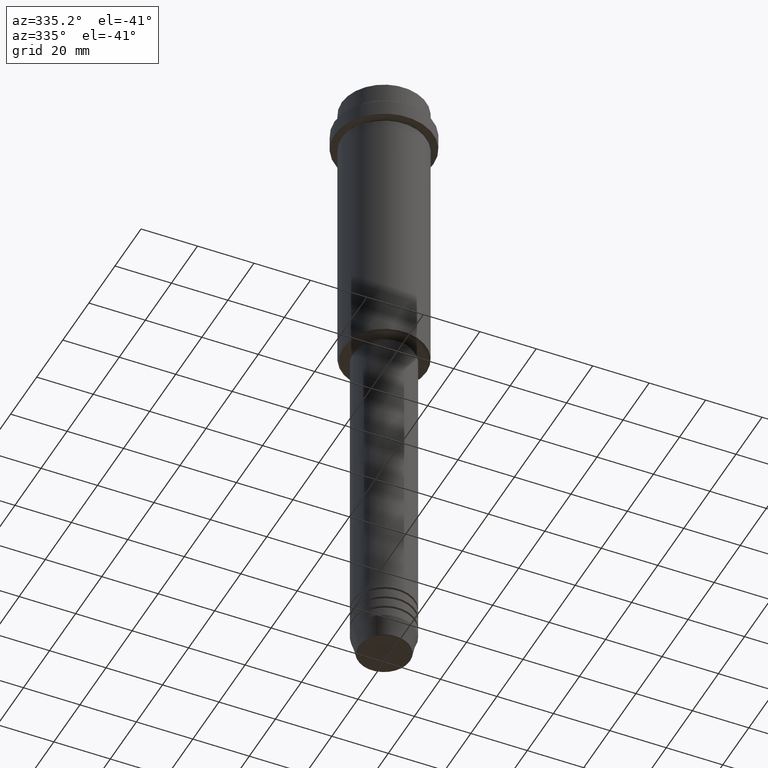
[diagram: clean part render]
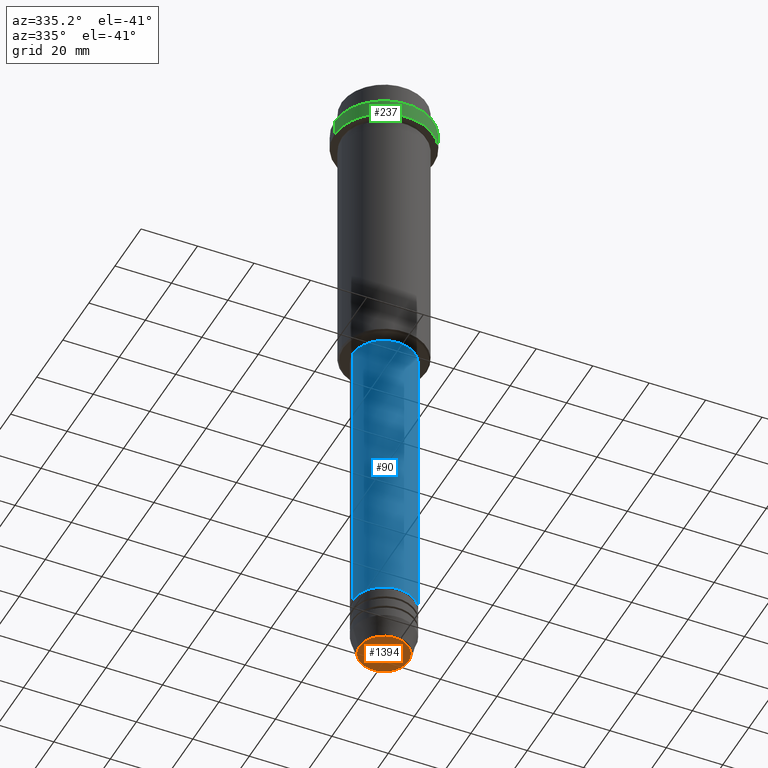
[diagram: same view with three faces highlighted in distinct colors, each labeled with its STEP entity id]
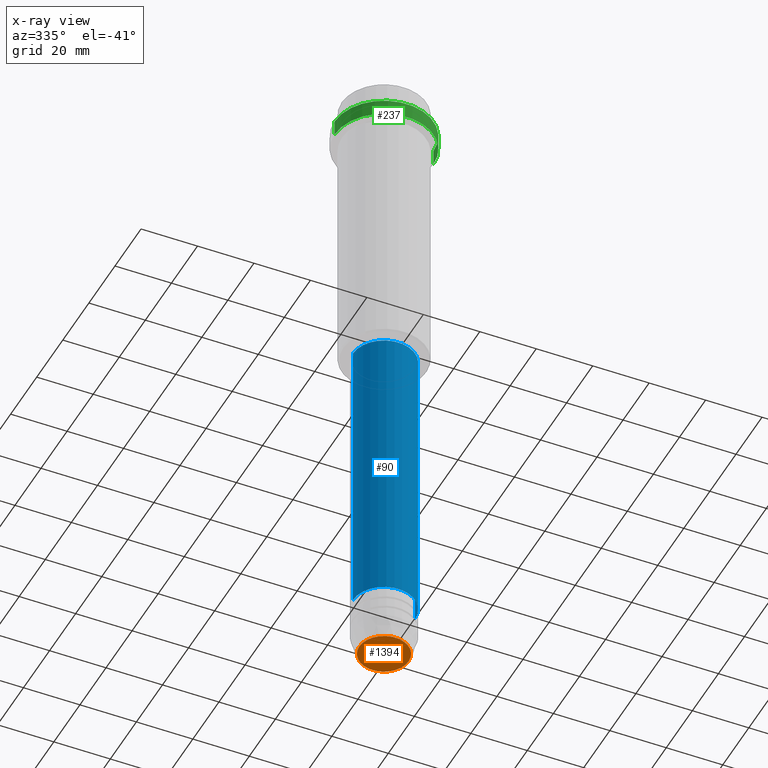
[diagram: x-ray of the same camera — body ghosted, the three highlighted faces saturated]
A machine part, auxiliary view with three faces highlighted in distinct colors.
The next image is the same camera in x-ray (body ghosted, the three faces saturated) — at least one of them is partly hidden behind the body in this view.
Their STEP definitions:

[orange] entity #1394 — the highlighted planar face has unit normal (0, -0, 1).
#45 = CARTESIAN_POINT ( 'NONE',  ( -8.740692158992656502, 1.099999016768739653E-15, -229.9999999999999716 ) ) ;
#200 = DIRECTION ( 'NONE',  ( 1.000000000000000000, 0.000000000000000000, 0.000000000000000000 ) ) ;
#213 = AXIS2_PLACEMENT_3D ( 'NONE', #323, #1186, #426 ) ;
#223 = ORIENTED_EDGE ( 'NONE', *, *, #563, .T. ) ;
#259 = AXIS2_PLACEMENT_3D ( 'NONE', #751, #1184, #200 ) ;
#313 = FACE_OUTER_BOUND ( 'NONE', #1400, .T. ) ;
#321 = CIRCLE ( 'NONE', #575, 8.740692158992656502 ) ;
#323 = CARTESIAN_POINT ( 'NONE',  ( 0.000000000000000000, 0.000000000000000000, -229.9999999999999716 ) ) ;
#332 = EDGE_CURVE ( 'NONE', #683, #346, #321, .T. ) ;
#346 = VERTEX_POINT ( 'NONE', #45 ) ;
#426 = DIRECTION ( 'NONE',  ( 1.000000000000000000, 0.000000000000000000, 0.000000000000000000 ) ) ;
#450 = ORIENTED_EDGE ( 'NONE', *, *, #332, .T. ) ;
#476 = CARTESIAN_POINT ( 'NONE',  ( 0.000000000000000000, 0.000000000000000000, -229.9999999999999716 ) ) ;
#563 = EDGE_CURVE ( 'NONE', #346, #683, #673, .T. ) ;
#575 = AXIS2_PLACEMENT_3D ( 'NONE', #476, #916, #936 ) ;
#673 = CIRCLE ( 'NONE', #259, 8.740692158992656502 ) ;
#683 = VERTEX_POINT ( 'NONE', #1150 ) ;
#751 = CARTESIAN_POINT ( 'NONE',  ( 0.000000000000000000, 0.000000000000000000, -229.9999999999999716 ) ) ;
#916 = DIRECTION ( 'NONE',  ( 0.000000000000000000, 0.000000000000000000, -1.000000000000000000 ) ) ;
#936 = DIRECTION ( 'NONE',  ( 1.000000000000000000, 0.000000000000000000, 0.000000000000000000 ) ) ;
#1150 = CARTESIAN_POINT ( 'NONE',  ( 8.740692158992656502, 0.000000000000000000, -229.9999999999999716 ) ) ;
#1184 = DIRECTION ( 'NONE',  ( 0.000000000000000000, 0.000000000000000000, -1.000000000000000000 ) ) ;
#1186 = DIRECTION ( 'NONE',  ( 0.000000000000000000, -0.000000000000000000, 1.000000000000000000 ) ) ;
#1326 = PLANE ( 'NONE',  #213 ) ;
#1394 = ADVANCED_FACE ( 'NONE', ( #313 ), #1326, .F. ) ;
#1400 = EDGE_LOOP ( 'NONE', ( #450, #223 ) ) ;

[blue] entity #90 — the highlighted cylindrical surface (edge-blend (fillet) strip) has radius 11 mm, axis along (-0, -0, 1).
#11 = DIRECTION ( 'NONE',  ( 1.000000000000000000, 0.000000000000000000, 0.000000000000000000 ) ) ;
#58 = CIRCLE ( 'NONE', #1390, 10.99999999999999822 ) ;
#61 = CARTESIAN_POINT ( 'NONE',  ( 0.000000000000000000, 0.000000000000000000, -210.9999999999998579 ) ) ;
#70 = LINE ( 'NONE', #289, #528 ) ;
#73 = ORIENTED_EDGE ( 'NONE', *, *, #885, .T. ) ;
#85 = CARTESIAN_POINT ( 'NONE',  ( 0.000000000000000000, 0.000000000000000000, -105.9999999999999858 ) ) ;
#90 = ADVANCED_FACE ( 'NONE', ( #898 ), #778, .T. ) ;
#114 = EDGE_CURVE ( 'NONE', #146, #325, #891, .T. ) ;
#146 = VERTEX_POINT ( 'NONE', #993 ) ;
#147 = AXIS2_PLACEMENT_3D ( 'NONE', #454, #221, #11 ) ;
#150 = CARTESIAN_POINT ( 'NONE',  ( -10.99999999999999822, 1.347111479062088207E-15, -105.9999999999999858 ) ) ;
#165 = VECTOR ( 'NONE', #246, 1000.000000000000000 ) ;
#168 = EDGE_LOOP ( 'NONE', ( #481, #342, #73, #1185 ) ) ;
#214 = CARTESIAN_POINT ( 'NONE',  ( -11.00000000000000000, 1.347111479062088405E-15, 0.000000000000000000 ) ) ;
#221 = DIRECTION ( 'NONE',  ( -0.000000000000000000, -0.000000000000000000, 1.000000000000000000 ) ) ;
#246 = DIRECTION ( 'NONE',  ( -0.000000000000000000, -0.000000000000000000, 1.000000000000000000 ) ) ;
#289 = CARTESIAN_POINT ( 'NONE',  ( 11.00000000000000000, 0.000000000000000000, 0.000000000000000000 ) ) ;
#325 = VERTEX_POINT ( 'NONE', #150 ) ;
#342 = ORIENTED_EDGE ( 'NONE', *, *, #367, .T. ) ;
#367 = EDGE_CURVE ( 'NONE', #146, #419, #908, .T. ) ;
#374 = DIRECTION ( 'NONE',  ( 1.000000000000000000, 0.000000000000000000, 0.000000000000000000 ) ) ;
#419 = VERTEX_POINT ( 'NONE', #496 ) ;
#454 = CARTESIAN_POINT ( 'NONE',  ( 0.000000000000000000, 0.000000000000000000, 0.000000000000000000 ) ) ;
#481 = ORIENTED_EDGE ( 'NONE', *, *, #114, .F. ) ;
#496 = CARTESIAN_POINT ( 'NONE',  ( 11.00000000000000000, 0.000000000000000000, -210.9999999999998579 ) ) ;
#516 = DIRECTION ( 'NONE',  ( -0.000000000000000000, -0.000000000000000000, 1.000000000000000000 ) ) ;
#528 = VECTOR ( 'NONE', #634, 1000.000000000000000 ) ;
#548 = AXIS2_PLACEMENT_3D ( 'NONE', #61, #927, #374 ) ;
#634 = DIRECTION ( 'NONE',  ( -0.000000000000000000, -0.000000000000000000, 1.000000000000000000 ) ) ;
#651 = DIRECTION ( 'NONE',  ( 1.000000000000000000, 0.000000000000000000, 0.000000000000000000 ) ) ;
#690 = VERTEX_POINT ( 'NONE', #1041 ) ;
#778 = CYLINDRICAL_SURFACE ( 'NONE', #147, 11.00000000000000000 ) ;
#885 = EDGE_CURVE ( 'NONE', #419, #690, #70, .T. ) ;
#891 = LINE ( 'NONE', #214, #165 ) ;
#898 = FACE_OUTER_BOUND ( 'NONE', #168, .T. ) ;
#908 = CIRCLE ( 'NONE', #548, 11.00000000000000000 ) ;
#927 = DIRECTION ( 'NONE',  ( -0.000000000000000000, -0.000000000000000000, 1.000000000000000000 ) ) ;
#993 = CARTESIAN_POINT ( 'NONE',  ( -11.00000000000000000, 1.347111479062088405E-15, -210.9999999999998579 ) ) ;
#1041 = CARTESIAN_POINT ( 'NONE',  ( 10.99999999999999822, 0.000000000000000000, -105.9999999999999858 ) ) ;
#1185 = ORIENTED_EDGE ( 'NONE', *, *, #1378, .F. ) ;
#1378 = EDGE_CURVE ( 'NONE', #325, #690, #58, .T. ) ;
#1390 = AXIS2_PLACEMENT_3D ( 'NONE', #85, #516, #651 ) ;

[green] entity #237 — the highlighted cylindrical surface (partial cylindrical patch) has radius 17.5 mm, axis along (-0, -0, 1).
#1 = CARTESIAN_POINT ( 'NONE',  ( 0.000000000000000000, 0.000000000000000000, -15.00000000000000000 ) ) ;
#19 = ORIENTED_EDGE ( 'NONE', *, *, #174, .T. ) ;
#24 = EDGE_CURVE ( 'NONE', #1173, #312, #84, .T. ) ;
#74 = DIRECTION ( 'NONE',  ( -0.000000000000000000, -0.000000000000000000, 1.000000000000000000 ) ) ;
#84 = LINE ( 'NONE', #501, #785 ) ;
#102 = CARTESIAN_POINT ( 'NONE',  ( 17.50000000000000000, 0.000000000000000000, 0.000000000000000000 ) ) ;
#109 = DIRECTION ( 'NONE',  ( 1.000000000000000000, 0.000000000000000000, 0.000000000000000000 ) ) ;
#122 = CIRCLE ( 'NONE', #1265, 17.50000000000000000 ) ;
#145 = CARTESIAN_POINT ( 'NONE',  ( -17.50000000000000000, 2.143131898507868248E-15, -15.00000000000000000 ) ) ;
#161 = VERTEX_POINT ( 'NONE', #1308 ) ;
#174 = EDGE_CURVE ( 'NONE', #1173, #1344, #122, .T. ) ;
#237 = ADVANCED_FACE ( 'NONE', ( #874 ), #317, .T. ) ;
#312 = VERTEX_POINT ( 'NONE', #1022 ) ;
#317 = CYLINDRICAL_SURFACE ( 'NONE', #348, 17.50000000000000000 ) ;
#348 = AXIS2_PLACEMENT_3D ( 'NONE', #765, #1096, #109 ) ;
#409 = EDGE_LOOP ( 'NONE', ( #1309, #19, #660, #752 ) ) ;
#432 = DIRECTION ( 'NONE',  ( -0.000000000000000000, -0.000000000000000000, 1.000000000000000000 ) ) ;
#451 = LINE ( 'NONE', #102, #1296 ) ;
#474 = CARTESIAN_POINT ( 'NONE',  ( 0.000000000000000000, 0.000000000000000000, -9.499999999999971578 ) ) ;
#501 = CARTESIAN_POINT ( 'NONE',  ( -17.50000000000000000, 2.143131898507868248E-15, 0.000000000000000000 ) ) ;
#660 = ORIENTED_EDGE ( 'NONE', *, *, #1080, .T. ) ;
#676 = AXIS2_PLACEMENT_3D ( 'NONE', #474, #1348, #1020 ) ;
#698 = EDGE_CURVE ( 'NONE', #161, #312, #910, .T. ) ;
#752 = ORIENTED_EDGE ( 'NONE', *, *, #698, .T. ) ;
#765 = CARTESIAN_POINT ( 'NONE',  ( 0.000000000000000000, 0.000000000000000000, 0.000000000000000000 ) ) ;
#785 = VECTOR ( 'NONE', #74, 1000.000000000000000 ) ;
#874 = FACE_OUTER_BOUND ( 'NONE', #409, .T. ) ;
#910 = CIRCLE ( 'NONE', #676, 17.50000000000000000 ) ;
#998 = DIRECTION ( 'NONE',  ( -0.000000000000000000, -0.000000000000000000, 1.000000000000000000 ) ) ;
#1011 = DIRECTION ( 'NONE',  ( 1.000000000000000000, 0.000000000000000000, 0.000000000000000000 ) ) ;
#1020 = DIRECTION ( 'NONE',  ( 1.000000000000000000, 0.000000000000000000, 0.000000000000000000 ) ) ;
#1022 = CARTESIAN_POINT ( 'NONE',  ( -17.50000000000000000, 2.143131898507868248E-15, -9.499999999999971578 ) ) ;
#1080 = EDGE_CURVE ( 'NONE', #1344, #161, #451, .T. ) ;
#1096 = DIRECTION ( 'NONE',  ( -0.000000000000000000, -0.000000000000000000, 1.000000000000000000 ) ) ;
#1173 = VERTEX_POINT ( 'NONE', #145 ) ;
#1265 = AXIS2_PLACEMENT_3D ( 'NONE', #1, #432, #1011 ) ;
#1276 = CARTESIAN_POINT ( 'NONE',  ( 17.50000000000000000, 0.000000000000000000, -15.00000000000000000 ) ) ;
#1296 = VECTOR ( 'NONE', #998, 1000.000000000000000 ) ;
#1308 = CARTESIAN_POINT ( 'NONE',  ( 17.50000000000000000, 0.000000000000000000, -9.499999999999971578 ) ) ;
#1309 = ORIENTED_EDGE ( 'NONE', *, *, #24, .F. ) ;
#1344 = VERTEX_POINT ( 'NONE', #1276 ) ;
#1348 = DIRECTION ( 'NONE',  ( 0.000000000000000000, 0.000000000000000000, -1.000000000000000000 ) ) ;